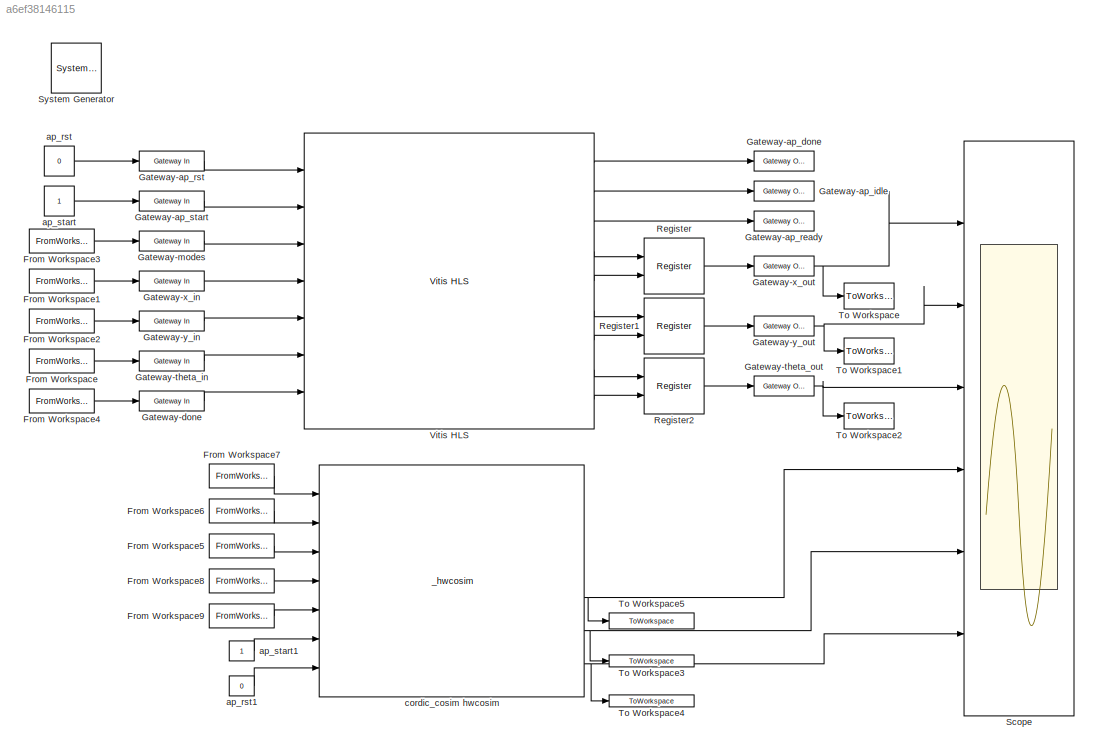
MODEL slx_a6ef38146115
KIND model
CONFIG AbsTol = auto
CONFIG EnableMultiTasking = off
CONFIG FixedStep = auto
CONFIG MaxStep = auto
CONFIG MinStep = auto
CONFIG RelTol = 1e-3
CONFIG SampleTimeConstraint = Unconstrained
CONFIG SolverName = VariableStepAuto
CONFIG StartTime = 0.0
CONFIG StopTime = 400
BLOCK [Reference]  System Generator  REF=xbsIndex_r4/ System Generator
  AttributesFormatString = System\nGenerator
  Ports = []
  SourceBlock = xbsIndex_r4/ System Generator
  SourceType = Xilinx System Generator Block
  Tag = genX
  UserDataPersistent = on
BLOCK [FromWorkspace] From Workspace
  Interpolate = off
  OutputAfterFinalValue = Setting to zero
  VariableName = theta_in
BLOCK [FromWorkspace] From Workspace1
  Interpolate = off
  OutputAfterFinalValue = Setting to zero
  VariableName = x_in
BLOCK [FromWorkspace] From Workspace2
  Interpolate = off
  OutputAfterFinalValue = Setting to zero
  VariableName = y_in
BLOCK [FromWorkspace] From Workspace3
  Interpolate = off
  OutputAfterFinalValue = Setting to zero
  VariableName = modes
BLOCK [FromWorkspace] From Workspace4
  Interpolate = off
  OutputAfterFinalValue = Setting to zero
  VariableName = done
BLOCK [FromWorkspace] From Workspace5
  Interpolate = off
  OutputAfterFinalValue = Setting to zero
  VariableName = theta_in
BLOCK [FromWorkspace] From Workspace6
  Interpolate = off
  OutputAfterFinalValue = Setting to zero
  VariableName = x_in
BLOCK [FromWorkspace] From Workspace7
  Interpolate = off
  OutputAfterFinalValue = Setting to zero
  VariableName = y_in
BLOCK [FromWorkspace] From Workspace8
  Interpolate = off
  OutputAfterFinalValue = Setting to zero
  VariableName = modes
BLOCK [FromWorkspace] From Workspace9
  Interpolate = off
  OutputAfterFinalValue = Setting to zero
  VariableName = done
BLOCK [Reference] Gateway-ap_done  REF=hdlBasic/Gateway Out
  Ports = [1, 1]
  SourceBlock = hdlBasic/Gateway Out
  SourceType = Gateway Out Block
BLOCK [Reference] Gateway-ap_idle  REF=hdlBasic/Gateway Out
  Ports = [1, 1]
  SourceBlock = hdlBasic/Gateway Out
  SourceType = Gateway Out Block
BLOCK [Reference] Gateway-ap_ready  REF=hdlBasic/Gateway Out
  Ports = [1, 1]
  SourceBlock = hdlBasic/Gateway Out
  SourceType = Gateway Out Block
BLOCK [Reference] Gateway-ap_rst  REF=hdlBasic/Gateway In
  Ports = [1, 1]
  SourceBlock = hdlBasic/Gateway In
  SourceType = Gateway In Block
BLOCK [Reference] Gateway-ap_start  REF=hdlBasic/Gateway In
  Ports = [1, 1]
  SourceBlock = hdlBasic/Gateway In
  SourceType = Gateway In Block
BLOCK [Reference] Gateway-done  REF=hdlBasic/Gateway In
  Ports = [1, 1]
  SourceBlock = hdlBasic/Gateway In
  SourceType = Gateway In Block
BLOCK [Reference] Gateway-modes  REF=hdlBasic/Gateway In
  Ports = [1, 1]
  SourceBlock = hdlBasic/Gateway In
  SourceType = Gateway In Block
BLOCK [Reference] Gateway-theta_in  REF=hdlBasic/Gateway In
  Ports = [1, 1]
  SourceBlock = hdlBasic/Gateway In
  SourceType = Gateway In Block
BLOCK [Reference] Gateway-theta_out  REF=hdlBasic/Gateway Out
  Ports = [1, 1]
  SourceBlock = hdlBasic/Gateway Out
  SourceType = Gateway Out Block
BLOCK [Reference] Gateway-x_in  REF=hdlBasic/Gateway In
  Ports = [1, 1]
  SourceBlock = hdlBasic/Gateway In
  SourceType = Gateway In Block
BLOCK [Reference] Gateway-x_out  REF=hdlBasic/Gateway Out
  Ports = [1, 1]
  SourceBlock = hdlBasic/Gateway Out
  SourceType = Gateway Out Block
BLOCK [Reference] Gateway-y_in  REF=hdlBasic/Gateway In
  Ports = [1, 1]
  SourceBlock = hdlBasic/Gateway In
  SourceType = Gateway In Block
BLOCK [Reference] Gateway-y_out  REF=hdlBasic/Gateway Out
  Ports = [1, 1]
  SourceBlock = hdlBasic/Gateway Out
  SourceType = Gateway Out Block
BLOCK [Reference] Register  REF=hdlBasic/Register
  Ports = [2, 1]
  SourceBlock = hdlBasic/Register
  SourceType = Register Block
BLOCK [Reference] Register1  REF=hdlBasic/Register
  Ports = [2, 1]
  SourceBlock = hdlBasic/Register
  SourceType = Register Block
BLOCK [Reference] Register2  REF=hdlBasic/Register
  Ports = [2, 1]
  SourceBlock = hdlBasic/Register
  SourceType = Register Block
BLOCK [Scope] Scope
  Floating = off
  NumInputPorts = 6
  Ports = [6]
  ScopeSpecificationString = Simulink.scopes.TimeScopeBlockCfg('CurrentConfiguration', extmgr.ConfigurationSet(extmgr.Configuration('Core','General UI',true),extmgr.Configuration('Core','Source UI',true),extmgr.Configuration('Sources','WiredSimulink',true),extmgr.Configuration('Visuals','Time Domain',true,'SerializedDisplays',{struct('MinYLimReal','-0.12524','MaxYLimReal','1.1272','YLabelReal','','MinYLimMag','0.00000','MaxYL...<+4858ch>
BLOCK [ToWorkspace] To Workspace
  FixptAsFi = on
  MaxDataPoints = inf
  Ports = [1]
  SampleTime = -1
  VariableName = x_out
BLOCK [ToWorkspace] To Workspace1
  FixptAsFi = on
  MaxDataPoints = inf
  Ports = [1]
  SampleTime = -1
  VariableName = y_out
BLOCK [ToWorkspace] To Workspace2
  FixptAsFi = on
  MaxDataPoints = inf
  Ports = [1]
  SampleTime = -1
  VariableName = theta_out
BLOCK [ToWorkspace] To Workspace3
  FixptAsFi = on
  MaxDataPoints = inf
  Ports = [1]
  SampleTime = -1
  VariableName = x_out_cosim
BLOCK [ToWorkspace] To Workspace4
  FixptAsFi = on
  MaxDataPoints = inf
  Ports = [1]
  SampleTime = -1
  VariableName = y_out_cosim
BLOCK [ToWorkspace] To Workspace5
  FixptAsFi = on
  MaxDataPoints = inf
  Ports = [1]
  SampleTime = -1
  VariableName = theta_out_cosim
BLOCK [Reference] Vitis HLS  REF=hdlBasic/Vitis HLS
  Ports = [7, 9]
  SourceBlock = hdlBasic/Vitis HLS
  SourceType = Xilinx High Level Synthesis Block
BLOCK [Constant] ap_rst
  Value = 0
BLOCK [Constant] ap_rst1
  Value = 0
BLOCK [Constant] ap_start
BLOCK [Constant] ap_start1
BLOCK [Reference] cordic_cosim hwcosim  REF=JTAGRuntimeCosim_r4/_hwcosim
  Ports = [7, 6]
  SourceBlock = JTAGRuntimeCosim_r4/_hwcosim
  SourceType = JTAG Hardware Co-simulation Block
LINE From Workspace1:1 -> Gateway-x_in:1
LINE From Workspace2:1 -> Gateway-y_in:1
LINE From Workspace3:1 -> Gateway-modes:1
LINE From Workspace4:1 -> Gateway-done:1
LINE From Workspace5:1 -> cordic_cosim hwcosim:3
LINE From Workspace6:1 -> cordic_cosim hwcosim:2
LINE From Workspace7:1 -> cordic_cosim hwcosim:1
LINE From Workspace8:1 -> cordic_cosim hwcosim:4
LINE From Workspace9:1 -> cordic_cosim hwcosim:5
LINE From Workspace:1 -> Gateway-theta_in:1
LINE Gateway-ap_rst:1 -> Vitis HLS:1
LINE Gateway-ap_start:1 -> Vitis HLS:2
LINE Gateway-done:1 -> Vitis HLS:7
LINE Gateway-modes:1 -> Vitis HLS:3
LINE Gateway-theta_in:1 -> Vitis HLS:6
NET Gateway-theta_out:1 -> Scope:3, To Workspace2:1
LINE Gateway-x_in:1 -> Vitis HLS:4
NET Gateway-x_out:1 -> Scope:1, To Workspace:1
LINE Gateway-y_in:1 -> Vitis HLS:5
NET Gateway-y_out:1 -> Scope:2, To Workspace1:1
LINE Register1:1 -> Gateway-y_out:1
LINE Register2:1 -> Gateway-theta_out:1
LINE Register:1 -> Gateway-x_out:1
LINE Vitis HLS:1 -> Gateway-ap_done:1
LINE Vitis HLS:2 -> Gateway-ap_idle:1
LINE Vitis HLS:3 -> Gateway-ap_ready:1
LINE Vitis HLS:4 -> Register:1
LINE Vitis HLS:5 -> Register:2
LINE Vitis HLS:6 -> Register1:1
LINE Vitis HLS:7 -> Register1:2
LINE Vitis HLS:8 -> Register2:1
LINE Vitis HLS:9 -> Register2:2
LINE ap_rst1:1 -> cordic_cosim hwcosim:7
LINE ap_rst:1 -> Gateway-ap_rst:1
LINE ap_start1:1 -> cordic_cosim hwcosim:6
LINE ap_start:1 -> Gateway-ap_start:1
NET cordic_cosim hwcosim:4 -> Scope:4, To Workspace5:1
NET cordic_cosim hwcosim:5 -> Scope:5, To Workspace3:1
NET cordic_cosim hwcosim:6 -> Scope:6, To Workspace4:1
note: NET lines group one-source signal fan-out (src -> all destinations, sorted); 1:1 wires keep LINE
